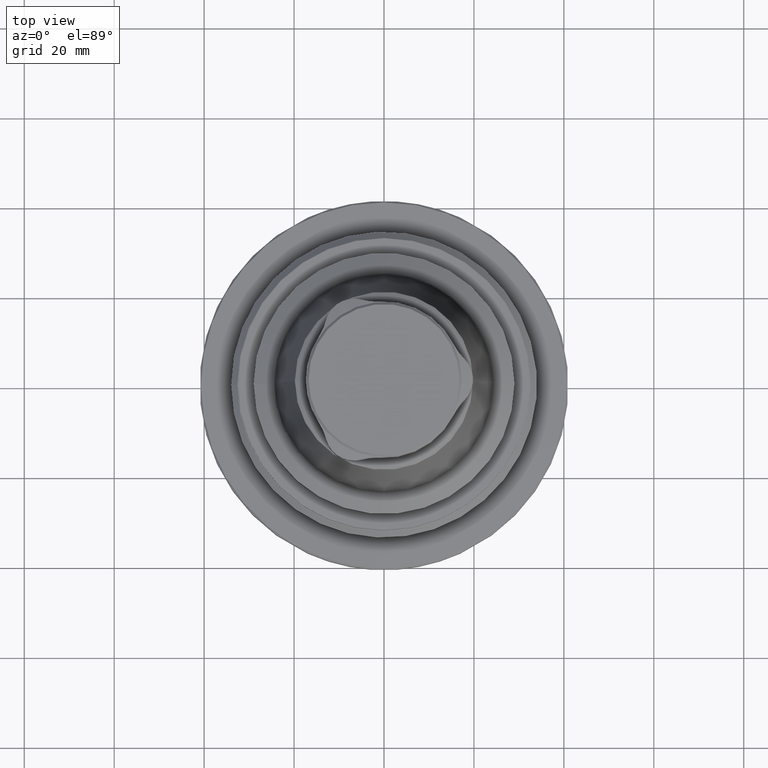
[diagram: clean part render]
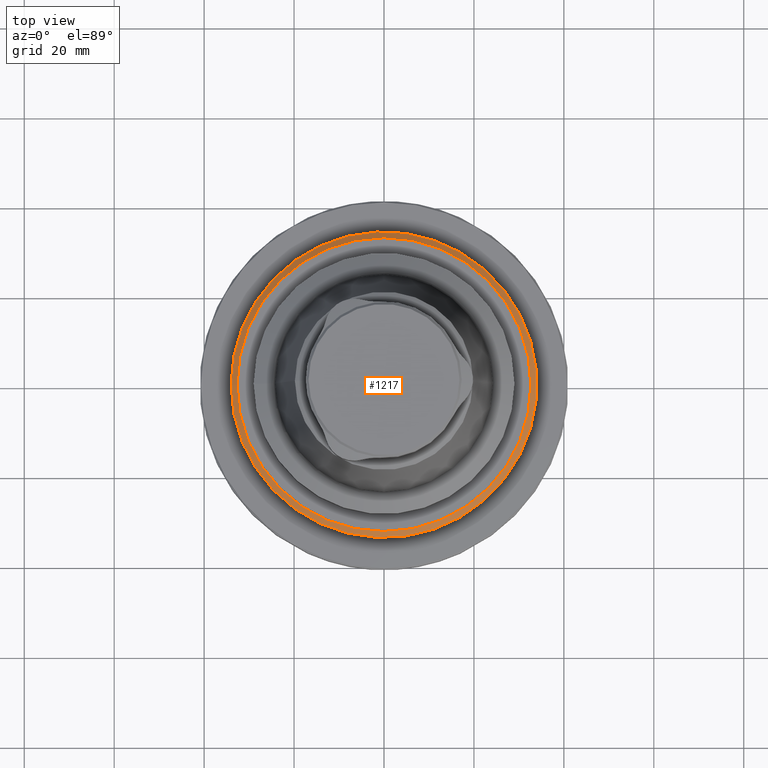
[diagram: same view with one face highlighted and labeled with its STEP entity id]
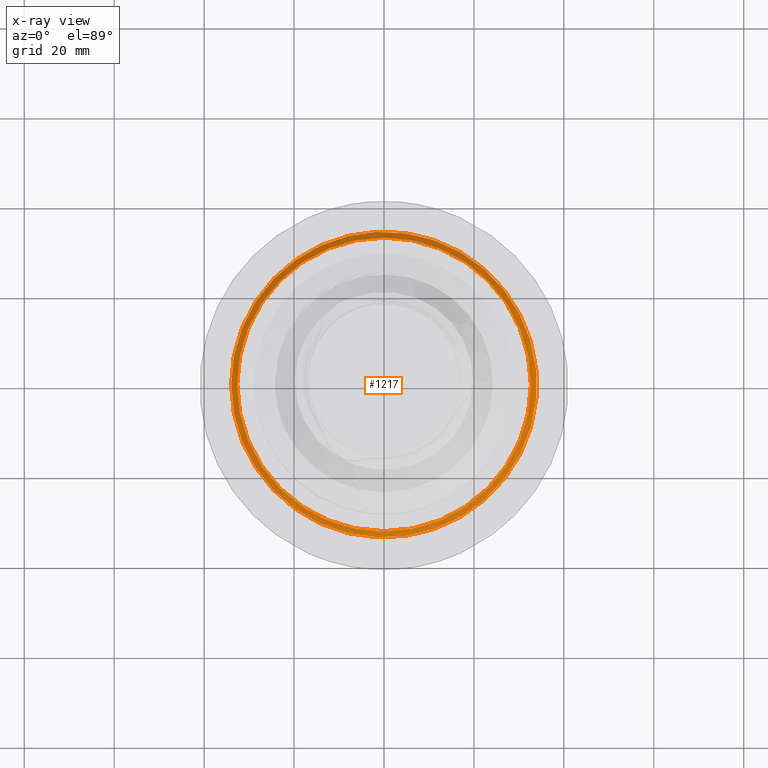
[diagram: x-ray of the same camera — body ghosted, the highlighted face saturated]
A machine part, top view. The second image highlights one B-rep face of the part: STEP entity #1217.
The next image is the same camera in x-ray: the body ghosted, the highlighted face saturated — about 0% of this face is hidden behind the body in this view.
In plain terms, the highlighted conical surface has half-angle 45 deg.
Its self-contained STEP definition (entity closure, byte-faithful):
#151=CONICAL_SURFACE('',#1354,32.6757350979542,0.785398163397448);
#322=ORIENTED_EDGE('',*,*,#605,.F.);
#323=ORIENTED_EDGE('',*,*,#553,.T.);
#553=EDGE_CURVE('',#717,#717,#837,.T.);
#605=EDGE_CURVE('',#758,#758,#872,.T.);
#717=VERTEX_POINT('',#1833);
#758=VERTEX_POINT('',#1973);
#837=CIRCLE('',#1287,32.6757350979542);
#872=CIRCLE('',#1353,34.);
#970=EDGE_LOOP('',(#322));
#971=EDGE_LOOP('',(#323));
#1100=FACE_BOUND('',#970,.T.);
#1101=FACE_BOUND('',#971,.T.);
#1217=ADVANCED_FACE('',(#1100,#1101),#151,.T.);
#1287=AXIS2_PLACEMENT_3D('',#1832,#1457,#1458);
#1353=AXIS2_PLACEMENT_3D('',#1972,#1602,#1603);
#1354=AXIS2_PLACEMENT_3D('',#1974,#1604,#1605);
#1457=DIRECTION('',(2.37516272644386E-69,1.04225259501902E-17,-1.));
#1458=DIRECTION('',(-1.,0.,0.));
#1602=DIRECTION('',(2.37516272644386E-69,1.04225259501902E-17,-1.));
#1603=DIRECTION('',(-1.,0.,0.));
#1604=DIRECTION('',(2.37516272644386E-69,1.04225259501902E-17,-1.));
#1605=DIRECTION('',(-1.,0.,0.));
#1832=CARTESIAN_POINT('',(7.88665112559661E-15,1.83160361878597E-18,8.42426490204583));
#1833=CARTESIAN_POINT('',(-32.6757350979542,1.83160361878597E-18,8.42426490204583));
#1972=CARTESIAN_POINT('',(7.88665112559661E-15,1.56337889252849E-17,7.09999999999999));
#1973=CARTESIAN_POINT('',(-34.,1.56337889252849E-17,7.09999999999999));
#1974=CARTESIAN_POINT('',(7.88665112559661E-15,1.83160361878597E-18,8.42426490204583));